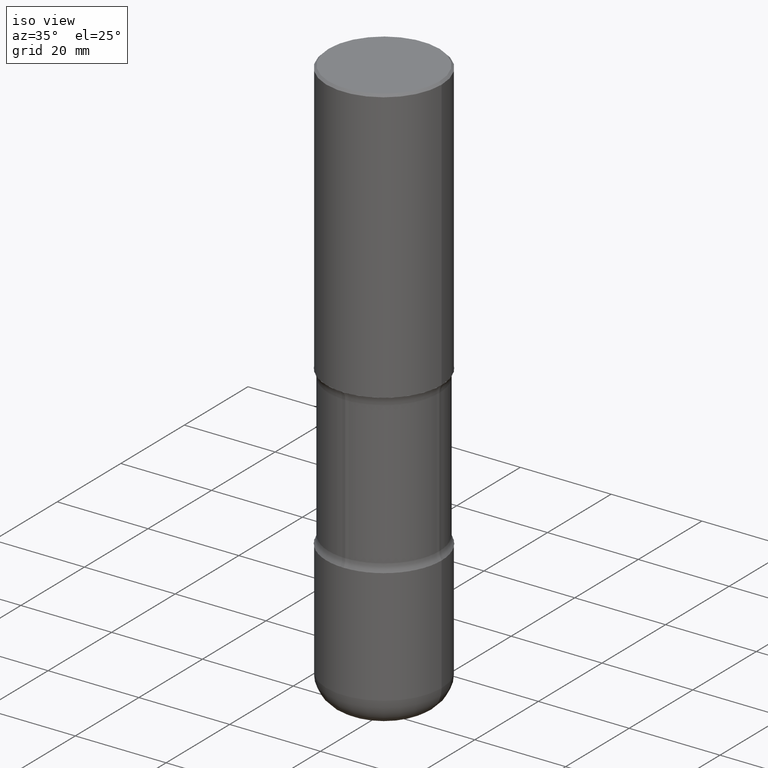
[diagram: clean part render]
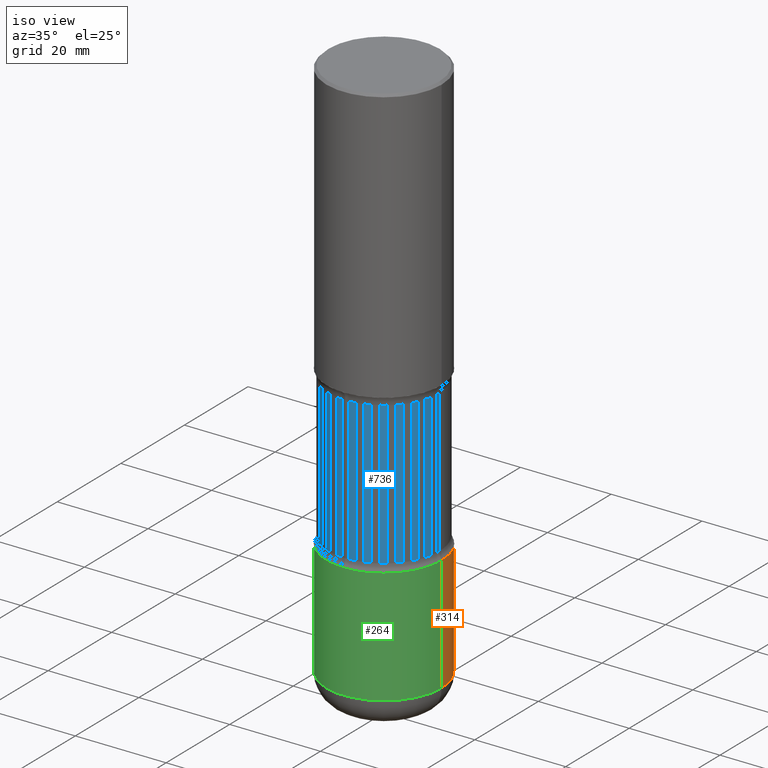
[diagram: same view with three faces highlighted in distinct colors, each labeled with its STEP entity id]
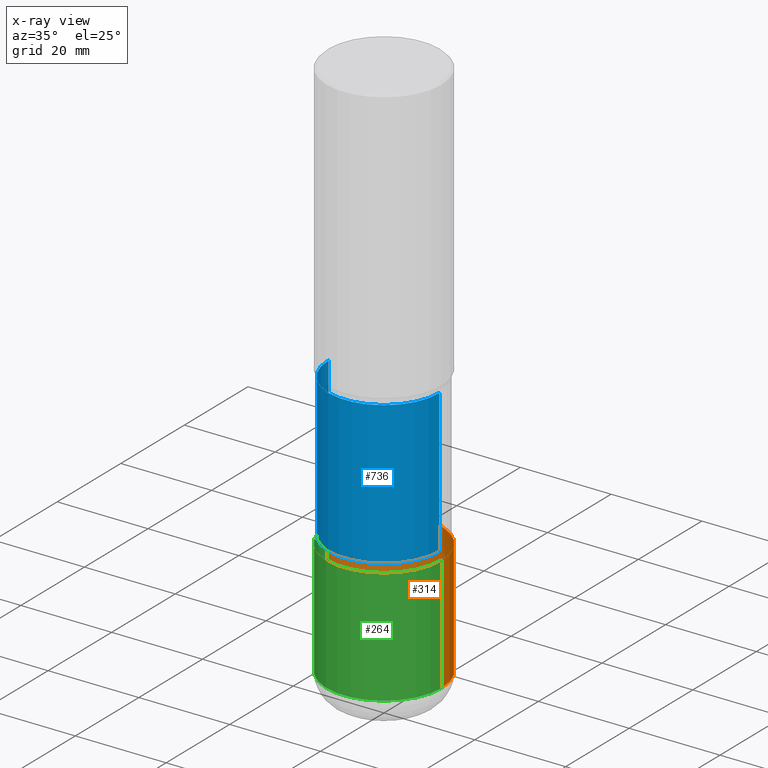
[diagram: x-ray of the same camera — body ghosted, the three highlighted faces saturated]
A machine part, iso view with three faces highlighted in distinct colors.
The next image is the same camera in x-ray (body ghosted, the three faces saturated) — at least one of them is partly hidden behind the body in this view.
Their STEP definitions:

[orange] entity #314 — the highlighted cylindrical surface (partial cylindrical patch) has radius 12.7 mm, axis along (-0, 0, 1).
#4 = LINE ( 'NONE', #75, #434 ) ;
#15 = VERTEX_POINT ( 'NONE', #179 ) ;
#26 = EDGE_LOOP ( 'NONE', ( #484, #674, #460, #744 ) ) ;
#75 = CARTESIAN_POINT ( 'NONE',  ( 0.5000000000000000000, -3.491481338843133355E-15, 2.438088387897967896E-29 ) ) ;
#98 = CARTESIAN_POINT ( 'NONE',  ( 1.161597682937940108E-28, -1.658453635950494339E-14, -4.750000000000000000 ) ) ;
#128 = CARTESIAN_POINT ( 'NONE',  ( -0.5000000000000000000, -1.303182268070444246E-14, -4.750000000000000000 ) ) ;
#136 = DIRECTION ( 'NONE',  ( -2.445468806185136877E-29, 3.491481338843145188E-15, 1.000000000000000000 ) ) ;
#146 = DIRECTION ( 'NONE',  ( -2.445468806185136597E-29, 3.491481338843145583E-15, 1.000000000000000000 ) ) ;
#161 = DIRECTION ( 'NONE',  ( -2.445468806185136597E-29, 3.491481338843145583E-15, 1.000000000000000000 ) ) ;
#166 = DIRECTION ( 'NONE',  ( -2.445468806185136597E-29, 3.491481338843145583E-15, 1.000000000000000000 ) ) ;
#179 = CARTESIAN_POINT ( 'NONE',  ( 0.5000000000000000000, -2.007601769834807675E-14, -4.750000000000000000 ) ) ;
#205 = VERTEX_POINT ( 'NONE', #561 ) ;
#212 = EDGE_CURVE ( 'NONE', #15, #205, #4, .T. ) ;
#292 = AXIS2_PLACEMENT_3D ( 'NONE', #481, #161, #773 ) ;
#314 = ADVANCED_FACE ( 'NONE', ( #339 ), #707, .T. ) ;
#325 = CARTESIAN_POINT ( 'NONE',  ( -0.5000000000000000000, 3.552713678800500929E-15, -2.459467545127452891E-29 ) ) ;
#339 = FACE_OUTER_BOUND ( 'NONE', #26, .T. ) ;
#343 = AXIS2_PLACEMENT_3D ( 'NONE', #98, #166, #652 ) ;
#348 = CARTESIAN_POINT ( 'NONE',  ( 9.170508023194262238E-29, -1.309305502066179741E-14, -3.750000000000000000 ) ) ;
#396 = DIRECTION ( 'NONE',  ( 1.000000000000000000, -6.982962677686266711E-15, 0.000000000000000000 ) ) ;
#434 = VECTOR ( 'NONE', #514, 39.37007874015748143 ) ;
#458 = EDGE_CURVE ( 'NONE', #15, #646, #752, .T. ) ;
#460 = ORIENTED_EDGE ( 'NONE', *, *, #801, .F. ) ;
#473 = AXIS2_PLACEMENT_3D ( 'NONE', #348, #146, #396 ) ;
#481 = CARTESIAN_POINT ( 'NONE',  ( 0.000000000000000000, 0.000000000000000000, 0.000000000000000000 ) ) ;
#484 = ORIENTED_EDGE ( 'NONE', *, *, #458, .T. ) ;
#514 = DIRECTION ( 'NONE',  ( -2.445468806185136877E-29, 3.491481338843145188E-15, 1.000000000000000000 ) ) ;
#525 = CIRCLE ( 'NONE', #473, 0.5000000000000000000 ) ;
#561 = CARTESIAN_POINT ( 'NONE',  ( 0.5000000000000000000, -1.658453635950493077E-14, -3.750000000000000000 ) ) ;
#623 = LINE ( 'NONE', #325, #660 ) ;
#646 = VERTEX_POINT ( 'NONE', #128 ) ;
#652 = DIRECTION ( 'NONE',  ( 1.000000000000000000, -6.982962677686265133E-15, 0.000000000000000000 ) ) ;
#653 = VERTEX_POINT ( 'NONE', #762 ) ;
#660 = VECTOR ( 'NONE', #136, 39.37007874015748143 ) ;
#674 = ORIENTED_EDGE ( 'NONE', *, *, #700, .T. ) ;
#700 = EDGE_CURVE ( 'NONE', #646, #653, #623, .T. ) ;
#707 = CYLINDRICAL_SURFACE ( 'NONE', #292, 0.5000000000000000000 ) ;
#744 = ORIENTED_EDGE ( 'NONE', *, *, #212, .F. ) ;
#752 = CIRCLE ( 'NONE', #343, 0.5000000000000001110 ) ;
#762 = CARTESIAN_POINT ( 'NONE',  ( -0.5000000000000000000, -1.128608201128286947E-14, -3.750000000000000000 ) ) ;
#773 = DIRECTION ( 'NONE',  ( 1.000000000000000000, -6.982962677686266711E-15, 4.876176775795935793E-29 ) ) ;
#801 = EDGE_CURVE ( 'NONE', #205, #653, #525, .T. ) ;

[blue] entity #736 — the highlighted cylindrical surface (partial cylindrical patch) has radius 12.192 mm, axis along (-0, 0, 1).
#2 = CARTESIAN_POINT ( 'NONE',  ( -0.4799999999999999267, -4.929010667377771797E-15, -2.442823299831252903 ) ) ;
#18 = CYLINDRICAL_SURFACE ( 'NONE', #380, 0.4800000000000000933 ) ;
#27 = AXIS2_PLACEMENT_3D ( 'NONE', #506, #388, #685 ) ;
#60 = VERTEX_POINT ( 'NONE', #503 ) ;
#69 = EDGE_CURVE ( 'NONE', #778, #273, #798, .T. ) ;
#79 = EDGE_LOOP ( 'NONE', ( #533, #728, #412, #695 ) ) ;
#115 = EDGE_CURVE ( 'NONE', #273, #60, #229, .T. ) ;
#125 = DIRECTION ( 'NONE',  ( -2.445468806185136597E-29, 3.491481338843145583E-15, 1.000000000000000000 ) ) ;
#185 = EDGE_CURVE ( 'NONE', #629, #60, #390, .T. ) ;
#196 = DIRECTION ( 'NONE',  ( 1.000000000000000000, -6.982962677686266711E-15, 0.000000000000000000 ) ) ;
#229 = CIRCLE ( 'NONE', #616, 0.4799999999999999267 ) ;
#256 = DIRECTION ( 'NONE',  ( -2.445468806185136597E-29, 3.491481338843145583E-15, 1.000000000000000000 ) ) ;
#273 = VERTEX_POINT ( 'NONE', #2 ) ;
#274 = CARTESIAN_POINT ( 'NONE',  ( 5.807988414689700538E-29, -8.292268179752471696E-15, -2.375000000000000000 ) ) ;
#373 = DIRECTION ( 'NONE',  ( -2.445468806185136877E-29, 3.491481338843145188E-15, 1.000000000000000000 ) ) ;
#375 = DIRECTION ( 'NONE',  ( 1.000000000000000000, -6.982962677686268288E-15, 0.000000000000000000 ) ) ;
#380 = AXIS2_PLACEMENT_3D ( 'NONE', #274, #125, #375 ) ;
#388 = DIRECTION ( 'NONE',  ( -2.445468806185136597E-29, 3.491481338843145583E-15, 1.000000000000000000 ) ) ;
#390 = LINE ( 'NONE', #684, #535 ) ;
#412 = ORIENTED_EDGE ( 'NONE', *, *, #185, .T. ) ;
#503 = CARTESIAN_POINT ( 'NONE',  ( 0.4799999999999999267, -1.188089405074146193E-14, -2.442823299831252903 ) ) ;
#504 = CARTESIAN_POINT ( 'NONE',  ( 0.4800000000000001488, -1.620807332025162227E-14, -3.682176700168747541 ) ) ;
#506 = CARTESIAN_POINT ( 'NONE',  ( 9.004648259124392254E-29, -1.285625123496221394E-14, -3.682176700168747541 ) ) ;
#524 = CIRCLE ( 'NONE', #27, 0.4800000000000001488 ) ;
#533 = ORIENTED_EDGE ( 'NONE', *, *, #69, .F. ) ;
#535 = VECTOR ( 'NONE', #624, 39.37007874015748143 ) ;
#572 = FACE_OUTER_BOUND ( 'NONE', #79, .T. ) ;
#616 = AXIS2_PLACEMENT_3D ( 'NONE', #804, #256, #196 ) ;
#624 = DIRECTION ( 'NONE',  ( -2.445468806185136877E-29, 3.491481338843145188E-15, 1.000000000000000000 ) ) ;
#629 = VERTEX_POINT ( 'NONE', #504 ) ;
#642 = VECTOR ( 'NONE', #373, 39.37007874015748143 ) ;
#677 = CARTESIAN_POINT ( 'NONE',  ( -0.4800000000000000933, -4.881663048103990141E-15, -2.375000000000000000 ) ) ;
#684 = CARTESIAN_POINT ( 'NONE',  ( 0.4800000000000000933, -1.164409026504188161E-14, -2.375000000000000000 ) ) ;
#685 = DIRECTION ( 'NONE',  ( 1.000000000000000000, -6.982962677686265922E-15, 0.000000000000000000 ) ) ;
#686 = EDGE_CURVE ( 'NONE', #778, #629, #524, .T. ) ;
#695 = ORIENTED_EDGE ( 'NONE', *, *, #115, .F. ) ;
#728 = ORIENTED_EDGE ( 'NONE', *, *, #686, .T. ) ;
#736 = ADVANCED_FACE ( 'NONE', ( #572 ), #18, .T. ) ;
#768 = CARTESIAN_POINT ( 'NONE',  ( -0.4800000000000002043, -9.492993722587514039E-15, -3.682176700168747541 ) ) ;
#778 = VERTEX_POINT ( 'NONE', #768 ) ;
#798 = LINE ( 'NONE', #677, #642 ) ;
#804 = CARTESIAN_POINT ( 'NONE',  ( 5.973848178759569401E-29, -8.529071965452053594E-15, -2.442823299831252903 ) ) ;

[green] entity #264 — the highlighted cylindrical surface (partial cylindrical patch) has radius 12.7 mm, axis along (-0, 0, 1).
#4 = LINE ( 'NONE', #75, #434 ) ;
#7 = CARTESIAN_POINT ( 'NONE',  ( 0.000000000000000000, 0.000000000000000000, 0.000000000000000000 ) ) ;
#9 = AXIS2_PLACEMENT_3D ( 'NONE', #7, #258, #563 ) ;
#15 = VERTEX_POINT ( 'NONE', #179 ) ;
#75 = CARTESIAN_POINT ( 'NONE',  ( 0.5000000000000000000, -3.491481338843133355E-15, 2.438088387897967896E-29 ) ) ;
#77 = CYLINDRICAL_SURFACE ( 'NONE', #9, 0.5000000000000000000 ) ;
#128 = CARTESIAN_POINT ( 'NONE',  ( -0.5000000000000000000, -1.303182268070444246E-14, -4.750000000000000000 ) ) ;
#136 = DIRECTION ( 'NONE',  ( -2.445468806185136877E-29, 3.491481338843145188E-15, 1.000000000000000000 ) ) ;
#156 = EDGE_LOOP ( 'NONE', ( #487, #783, #183, #539 ) ) ;
#179 = CARTESIAN_POINT ( 'NONE',  ( 0.5000000000000000000, -2.007601769834807675E-14, -4.750000000000000000 ) ) ;
#183 = ORIENTED_EDGE ( 'NONE', *, *, #212, .T. ) ;
#205 = VERTEX_POINT ( 'NONE', #561 ) ;
#212 = EDGE_CURVE ( 'NONE', #15, #205, #4, .T. ) ;
#232 = DIRECTION ( 'NONE',  ( 1.000000000000000000, -6.982962677686265133E-15, 0.000000000000000000 ) ) ;
#258 = DIRECTION ( 'NONE',  ( -2.445468806185136597E-29, 3.491481338843145583E-15, 1.000000000000000000 ) ) ;
#264 = ADVANCED_FACE ( 'NONE', ( #637 ), #77, .T. ) ;
#325 = CARTESIAN_POINT ( 'NONE',  ( -0.5000000000000000000, 3.552713678800500929E-15, -2.459467545127452891E-29 ) ) ;
#403 = AXIS2_PLACEMENT_3D ( 'NONE', #465, #470, #232 ) ;
#406 = EDGE_CURVE ( 'NONE', #646, #15, #669, .T. ) ;
#407 = CARTESIAN_POINT ( 'NONE',  ( 9.170508023194262238E-29, -1.309305502066179741E-14, -3.750000000000000000 ) ) ;
#434 = VECTOR ( 'NONE', #514, 39.37007874015748143 ) ;
#465 = CARTESIAN_POINT ( 'NONE',  ( 1.161597682937940108E-28, -1.658453635950494339E-14, -4.750000000000000000 ) ) ;
#470 = DIRECTION ( 'NONE',  ( -2.445468806185136597E-29, 3.491481338843145583E-15, 1.000000000000000000 ) ) ;
#487 = ORIENTED_EDGE ( 'NONE', *, *, #700, .F. ) ;
#511 = CIRCLE ( 'NONE', #633, 0.5000000000000000000 ) ;
#514 = DIRECTION ( 'NONE',  ( -2.445468806185136877E-29, 3.491481338843145188E-15, 1.000000000000000000 ) ) ;
#539 = ORIENTED_EDGE ( 'NONE', *, *, #753, .F. ) ;
#561 = CARTESIAN_POINT ( 'NONE',  ( 0.5000000000000000000, -1.658453635950493077E-14, -3.750000000000000000 ) ) ;
#563 = DIRECTION ( 'NONE',  ( 1.000000000000000000, -6.982962677686266711E-15, 4.876176775795935793E-29 ) ) ;
#623 = LINE ( 'NONE', #325, #660 ) ;
#633 = AXIS2_PLACEMENT_3D ( 'NONE', #407, #643, #711 ) ;
#637 = FACE_OUTER_BOUND ( 'NONE', #156, .T. ) ;
#643 = DIRECTION ( 'NONE',  ( -2.445468806185136597E-29, 3.491481338843145583E-15, 1.000000000000000000 ) ) ;
#646 = VERTEX_POINT ( 'NONE', #128 ) ;
#653 = VERTEX_POINT ( 'NONE', #762 ) ;
#660 = VECTOR ( 'NONE', #136, 39.37007874015748143 ) ;
#669 = CIRCLE ( 'NONE', #403, 0.5000000000000001110 ) ;
#700 = EDGE_CURVE ( 'NONE', #646, #653, #623, .T. ) ;
#711 = DIRECTION ( 'NONE',  ( 1.000000000000000000, -6.982962677686266711E-15, 0.000000000000000000 ) ) ;
#753 = EDGE_CURVE ( 'NONE', #653, #205, #511, .T. ) ;
#762 = CARTESIAN_POINT ( 'NONE',  ( -0.5000000000000000000, -1.128608201128286947E-14, -3.750000000000000000 ) ) ;
#783 = ORIENTED_EDGE ( 'NONE', *, *, #406, .T. ) ;